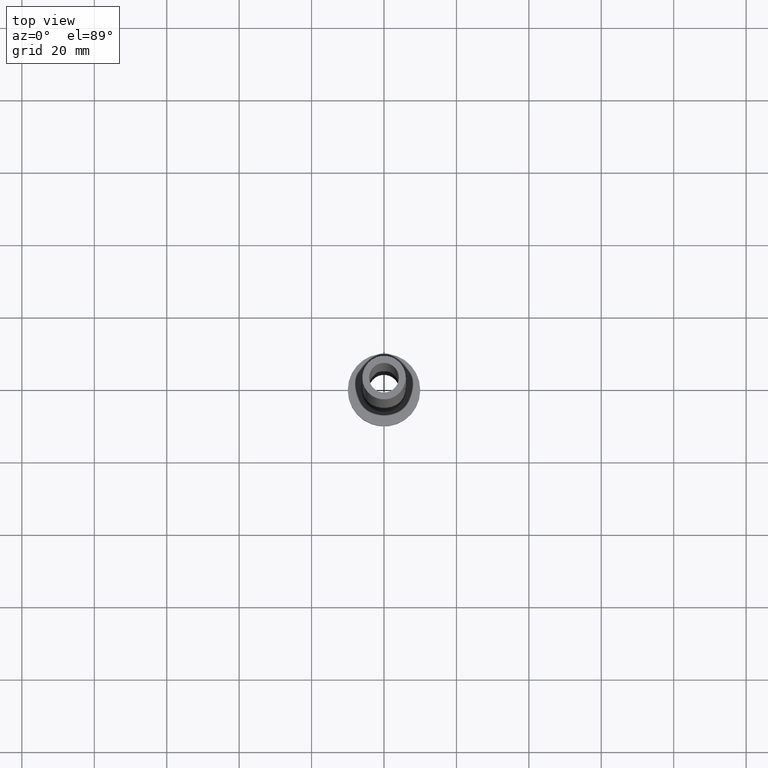
[diagram: clean part render]
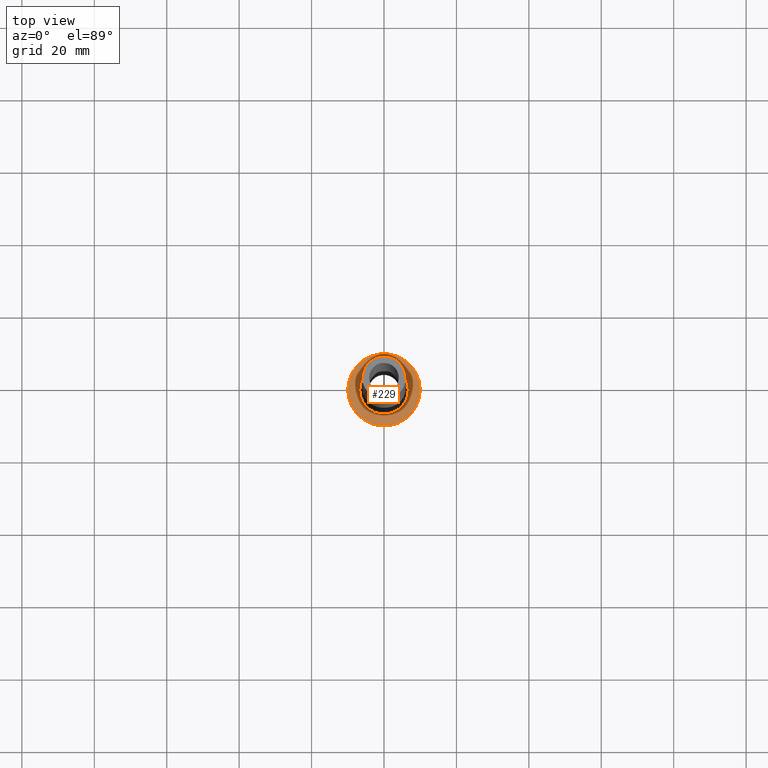
[diagram: same view with one face highlighted and labeled with its STEP entity id]
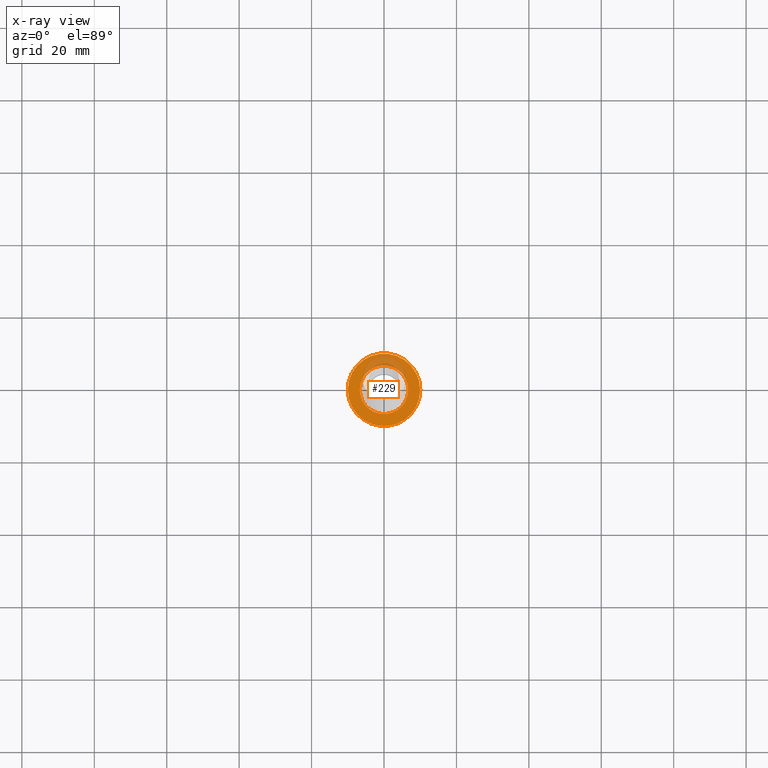
[diagram: x-ray of the same camera — body ghosted, the highlighted face saturated]
A machine part, top view. The second image highlights one B-rep face of the part: STEP entity #229.
The next image is the same camera in x-ray: the body ghosted, the highlighted face saturated — about 17% of this face is hidden behind the body in this view.
In plain terms, the highlighted planar face has unit normal (0, 0, 1).
Its self-contained STEP definition (entity closure, byte-faithful):
#2 = DIRECTION ( 'NONE',  ( 1.000000000000000000, 0.000000000000000000, 0.000000000000000000 ) ) ;
#5 = CARTESIAN_POINT ( 'NONE',  ( 0.000000000000000000, 0.000000000000000000, 7.000000000000000000 ) ) ;
#15 = VERTEX_POINT ( 'NONE', #106 ) ;
#19 = EDGE_CURVE ( 'NONE', #15, #83, #216, .T. ) ;
#28 = AXIS2_PLACEMENT_3D ( 'NONE', #5, #394, #149 ) ;
#32 = DIRECTION ( 'NONE',  ( 0.000000000000000000, 0.000000000000000000, 1.000000000000000000 ) ) ;
#34 = FACE_OUTER_BOUND ( 'NONE', #252, .T. ) ;
#62 = CARTESIAN_POINT ( 'NONE',  ( 0.000000000000000000, 0.000000000000000000, 7.000000000000000000 ) ) ;
#74 = AXIS2_PLACEMENT_3D ( 'NONE', #62, #32, #102 ) ;
#83 = VERTEX_POINT ( 'NONE', #413 ) ;
#102 = DIRECTION ( 'NONE',  ( 1.000000000000000000, 0.000000000000000000, -0.000000000000000000 ) ) ;
#106 = CARTESIAN_POINT ( 'NONE',  ( -10.00000000000000000, 0.000000000000000000, 7.000000000000000000 ) ) ;
#136 = DIRECTION ( 'NONE',  ( 1.000000000000000000, 0.000000000000000000, 0.000000000000000000 ) ) ;
#147 = VERTEX_POINT ( 'NONE', #208 ) ;
#149 = DIRECTION ( 'NONE',  ( 1.000000000000000000, 0.000000000000000000, 0.000000000000000000 ) ) ;
#171 = DIRECTION ( 'NONE',  ( -0.000000000000000000, -0.000000000000000000, -1.000000000000000000 ) ) ;
#177 = EDGE_LOOP ( 'NONE', ( #185, #325 ) ) ;
#180 = DIRECTION ( 'NONE',  ( 0.000000000000000000, 0.000000000000000000, 1.000000000000000000 ) ) ;
#185 = ORIENTED_EDGE ( 'NONE', *, *, #383, .T. ) ;
#197 = CIRCLE ( 'NONE', #354, 6.700000000000001066 ) ;
#199 = VERTEX_POINT ( 'NONE', #315 ) ;
#208 = CARTESIAN_POINT ( 'NONE',  ( -6.700000000000001066, 8.205133554287267548E-16, 7.000000000000006217 ) ) ;
#209 = PLANE ( 'NONE',  #74 ) ;
#216 = CIRCLE ( 'NONE', #401, 10.00000000000000000 ) ;
#229 = ADVANCED_FACE ( 'NONE', ( #430, #34 ), #209, .T. ) ;
#234 = EDGE_CURVE ( 'NONE', #147, #199, #362, .T. ) ;
#239 = CARTESIAN_POINT ( 'NONE',  ( 0.000000000000000000, 0.000000000000000000, 7.000000000000000000 ) ) ;
#249 = AXIS2_PLACEMENT_3D ( 'NONE', #239, #171, #136 ) ;
#252 = EDGE_LOOP ( 'NONE', ( #396, #358 ) ) ;
#282 = CIRCLE ( 'NONE', #28, 10.00000000000000000 ) ;
#315 = CARTESIAN_POINT ( 'NONE',  ( 6.700000000000001066, 0.000000000000000000, 7.000000000000006217 ) ) ;
#325 = ORIENTED_EDGE ( 'NONE', *, *, #234, .T. ) ;
#354 = AXIS2_PLACEMENT_3D ( 'NONE', #402, #360, #441 ) ;
#358 = ORIENTED_EDGE ( 'NONE', *, *, #380, .T. ) ;
#360 = DIRECTION ( 'NONE',  ( -0.000000000000000000, -0.000000000000000000, -1.000000000000000000 ) ) ;
#362 = CIRCLE ( 'NONE', #249, 6.700000000000001066 ) ;
#380 = EDGE_CURVE ( 'NONE', #83, #15, #282, .T. ) ;
#383 = EDGE_CURVE ( 'NONE', #199, #147, #197, .T. ) ;
#393 = CARTESIAN_POINT ( 'NONE',  ( 0.000000000000000000, 0.000000000000000000, 7.000000000000000000 ) ) ;
#394 = DIRECTION ( 'NONE',  ( 0.000000000000000000, 0.000000000000000000, 1.000000000000000000 ) ) ;
#396 = ORIENTED_EDGE ( 'NONE', *, *, #19, .T. ) ;
#401 = AXIS2_PLACEMENT_3D ( 'NONE', #393, #180, #2 ) ;
#402 = CARTESIAN_POINT ( 'NONE',  ( 0.000000000000000000, 0.000000000000000000, 7.000000000000000000 ) ) ;
#413 = CARTESIAN_POINT ( 'NONE',  ( 10.00000000000000000, 1.224646799147353256E-15, 7.000000000000000000 ) ) ;
#430 = FACE_BOUND ( 'NONE', #177, .T. ) ;
#441 = DIRECTION ( 'NONE',  ( 1.000000000000000000, 0.000000000000000000, 0.000000000000000000 ) ) ;